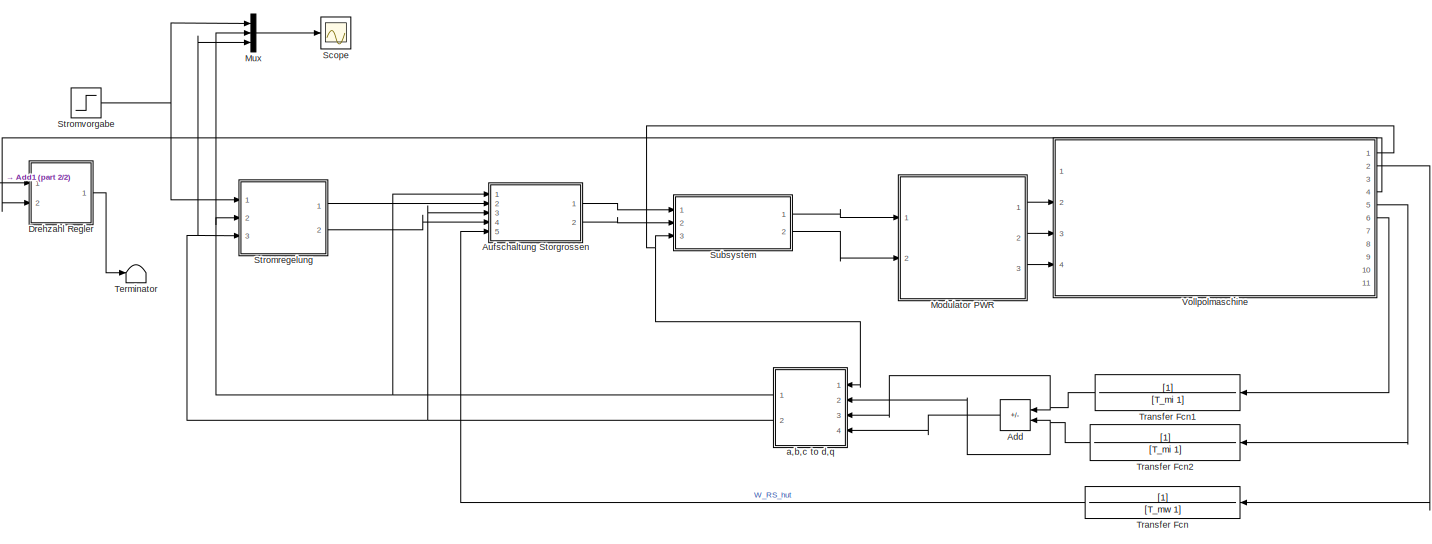
[diagram: root canvas - part 1/2, most of the canvas]
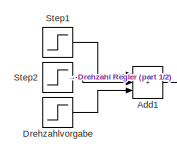
[diagram: root canvas - part 2/2, middle left region]
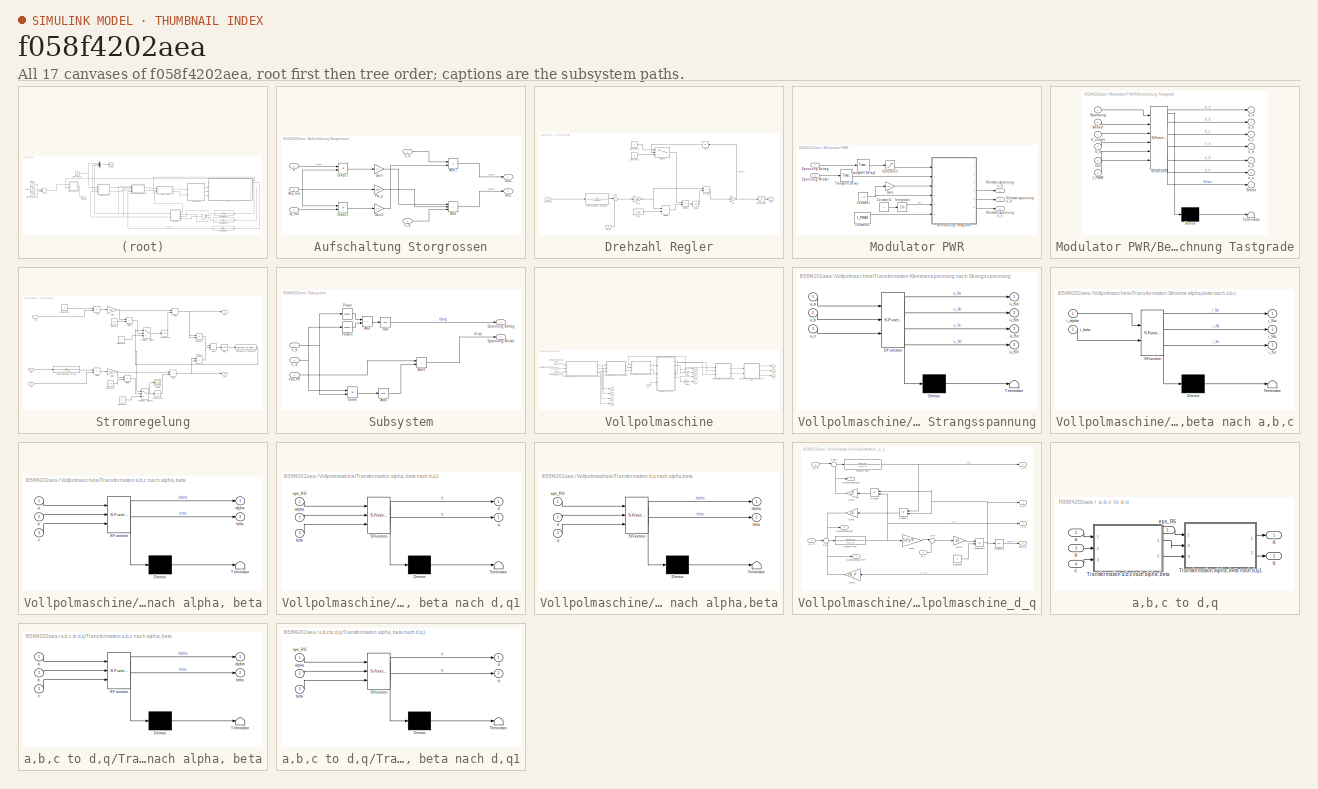
[diagram: thumbnail index - all 17 canvases of the model, root first then tree order]
MODEL slx_f058f4202aea
KIND model
CONFIG AbsTol = auto
CONFIG EnableMultiTasking = on
CONFIG FixedStep = 1e-8
CONFIG MaxStep = 1e-4
CONFIG MinStep = 1e-9
CONFIG RelTol = 1e-10
CONFIG SampleTimeConstraint = Unconstrained
CONFIG SolverName = VariableStepAuto
CONFIG StartTime = 0.0
CONFIG StopTime = 2
BLOCK [Sum] Add
  IconShape = rectangular
  Inputs = --
  NameLocation = top
  Ports = [2, 1]
BLOCK [Sum] Add1
  IconShape = rectangular
  Inputs = +++
  Ports = [3, 1]
BLOCK [SubSystem] Aufschaltung Storgrossen
  Ports = [5, 2]
  RequestExecContextInheritance = off
BLOCK [Sum] Aufschaltung Storgrossen/Add
  IconShape = rectangular
  Inputs = +++
  Ports = [3, 1]
BLOCK [Sum] Aufschaltung Storgrossen/Add1
  IconShape = rectangular
  Inputs = +-
  Ports = [2, 1]
BLOCK [Product] Aufschaltung Storgrossen/Divide1
  Inputs = **
  Ports = [2, 1]
  RndMeth = Zero
  SaturateOnIntegerOverflow = on
BLOCK [Product] Aufschaltung Storgrossen/Divide2
  Inputs = **
  Ports = [2, 1]
  RndMeth = Zero
  SaturateOnIntegerOverflow = on
BLOCK [Gain] Aufschaltung Storgrossen/Gain
  Gain = L_S
BLOCK [Gain] Aufschaltung Storgrossen/Gain1
  Gain = L_S
BLOCK [Outport] Aufschaltung Storgrossen/Out1
BLOCK [Outport] Aufschaltung Storgrossen/Out2
  Port = 2
BLOCK [Gain] Aufschaltung Storgrossen/Psi_p
  Gain = Psi_P
BLOCK [Inport] Aufschaltung Storgrossen/Wrs_hut
  Port = 5
BLOCK [Inport] Aufschaltung Storgrossen/d
  IconDisplay = Signal name
BLOCK [Inport] Aufschaltung Storgrossen/iq_hut
  Port = 3
BLOCK [Inport] Aufschaltung Storgrossen/u_d
  Port = 2
BLOCK [Inport] Aufschaltung Storgrossen/u_q
  Port = 4
BLOCK [SubSystem] Drehzahl Regler
  Ports = [2, 1]
  RequestExecContextInheritance = off
BLOCK [Abs] Drehzahl Regler/Abs1
  NameLocation = top
  SaturateOnIntegerOverflow = off
BLOCK [Constant] Drehzahl Regler/Constant2
  Value = 0
BLOCK [Constant] Drehzahl Regler/Constant3
BLOCK [Product] Drehzahl Regler/Divide2
  Inputs = */
  Ports = [2, 1]
BLOCK [Product] Drehzahl Regler/Divide3
  Inputs = **
  Ports = [2, 1]
BLOCK [TransferFcn] Drehzahl Regler/Führungsfilter Drehzahl
  Denominator = [T_nw 1]
BLOCK [Integrator] Drehzahl Regler/I_out1
  Ports = [1, 1]
BLOCK [Gain] Drehzahl Regler/Kp_w
  Gain = K_pw
BLOCK [Sum] Drehzahl Regler/PI_out1
  IconShape = rectangular
  Ports = [2, 1]
BLOCK [Saturate] Drehzahl Regler/Saturation1
  LowerLimit = -i_max
  UpperLimit = i_max
BLOCK [Sum] Drehzahl Regler/Sum
  Inputs = |+-
  Ports = [2, 1]
BLOCK [Switch] Drehzahl Regler/Switch1
  Criteria = u2 > Threshold
  InputSameDT = off
  SaturateOnIntegerOverflow = off
  Threshold = i_max
BLOCK [Constant] Drehzahl Regler/Tn_w
  Value = T_nw
BLOCK [Inport] Drehzahl Regler/W_m
  Port = 2
BLOCK [Inport] Drehzahl Regler/W_m_soll
BLOCK [Outport] Drehzahl Regler/i_q*
BLOCK [Gain] Drehzahl Regler/km
  Gain = 1/(3/2*p*Psi_P)
BLOCK [Step] Drehzahlvorgabe
  After = -30
  SampleTime = 0
  Time = 0.3
BLOCK [SubSystem] Modulator PWR
  Ports = [2, 3]
  RequestExecContextInheritance = off
  SystemSampleTime = 1/1e6
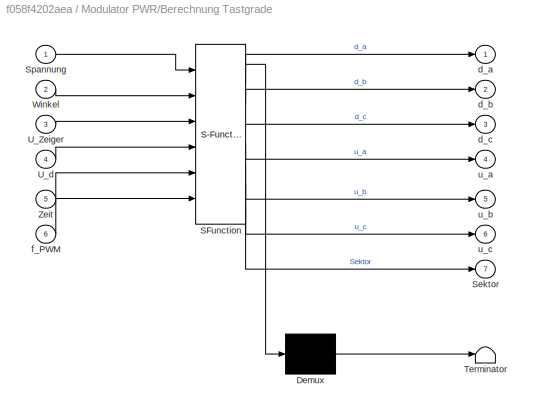
BLOCK [SubSystem] Modulator PWR/Berechnung Tastgrade
  ErrorFcn = Stateflow.Translate.translate
  PermitHierarchicalResolution = ExplicitOnly
  Ports = [6, 7]
  RequestExecContextInheritance = off
  SFBlockType = MATLAB Function
  SystemSampleTime = 1e-6
BLOCK [Demux] Modulator PWR/Berechnung Tastgrade/ Demux 
  Outputs = 1
  Ports = [1, 1]
BLOCK [S-Function] Modulator PWR/Berechnung Tastgrade/ SFunction 
  EnableBusSupport = on
  FunctionName = sf_sfun
  PortCounts = [6 8]
  Ports = [6, 8]
  SFcnIsStateOwnerBlock = off
  SFunctionDeploymentMode = off
  Tag = Stateflow S-Function 35
BLOCK [Terminator] Modulator PWR/Berechnung Tastgrade/ Terminator 
BLOCK [Outport] Modulator PWR/Berechnung Tastgrade/Sektor
  Port = 7
  VectorParamsAs1DForOutWhenUnconnected = off
BLOCK [Inport] Modulator PWR/Berechnung Tastgrade/Spannung
BLOCK [Inport] Modulator PWR/Berechnung Tastgrade/U_Zeiger
  Port = 3
BLOCK [Inport] Modulator PWR/Berechnung Tastgrade/U_d
  Port = 4
BLOCK [Inport] Modulator PWR/Berechnung Tastgrade/Winkel
  Port = 2
BLOCK [Inport] Modulator PWR/Berechnung Tastgrade/Zeit
  Port = 5
BLOCK [Outport] Modulator PWR/Berechnung Tastgrade/d_a
  VectorParamsAs1DForOutWhenUnconnected = off
BLOCK [Outport] Modulator PWR/Berechnung Tastgrade/d_b
  Port = 2
  VectorParamsAs1DForOutWhenUnconnected = off
BLOCK [Outport] Modulator PWR/Berechnung Tastgrade/d_c
  Port = 3
  VectorParamsAs1DForOutWhenUnconnected = off
BLOCK [Inport] Modulator PWR/Berechnung Tastgrade/f_PWM
  Port = 6
BLOCK [Outport] Modulator PWR/Berechnung Tastgrade/u_a
  Port = 4
  VectorParamsAs1DForOutWhenUnconnected = off
BLOCK [Outport] Modulator PWR/Berechnung Tastgrade/u_b
  Port = 5
  VectorParamsAs1DForOutWhenUnconnected = off
BLOCK [Outport] Modulator PWR/Berechnung Tastgrade/u_c
  Port = 6
  VectorParamsAs1DForOutWhenUnconnected = off
BLOCK [Constant] Modulator PWR/Constant
  Value = U_d
BLOCK [Constant] Modulator PWR/Constant1
BLOCK [Constant] Modulator PWR/Constant2
  Value = f_PWM
BLOCK [Gain] Modulator PWR/Gain
  Gain = 2/3
BLOCK [Integrator] Modulator PWR/Integrator
  Ports = [1, 1]
BLOCK [Outport] Modulator PWR/Klemmenspannung u_a
  VectorParamsAs1DForOutWhenUnconnected = off
BLOCK [Outport] Modulator PWR/Klemmenspannung u_b
  Port = 2
  VectorParamsAs1DForOutWhenUnconnected = off
BLOCK [Outport] Modulator PWR/Klemmenspannung u_c
  Port = 3
  VectorParamsAs1DForOutWhenUnconnected = off
BLOCK [Saturate] Modulator PWR/Saturation
  LowerLimit = 0
  UpperLimit = U_d*sqrt(3)/2
BLOCK [Inport] Modulator PWR/Spannung Betrag
BLOCK [Inport] Modulator PWR/Spannung Winkel
  Port = 2
BLOCK [TransportDelay] Modulator PWR/Transport Delay
  DelayTime = T_SR
  Ports = [1, 1]
BLOCK [TransportDelay] Modulator PWR/Transport Delay1
  DelayTime = T_SR
  Ports = [1, 1]
BLOCK [Mux] Mux
  DisplayOption = bar
  Inputs = 3
  Ports = [3, 1]
BLOCK [Scope] Scope
  Floating = off
  NumInputPorts = 1
  Ports = [1]
  ScopeSpecificationString = Simulink.scopes.TimeScopeBlockCfg('CurrentConfiguration', extmgr.ConfigurationSet(extmgr.Configuration('Core','General UI',true),extmgr.Configuration('Core','Source UI',true),extmgr.Configuration('Sources','WiredSimulink',true,'DataLoggingVariableName','ScopeData1'),extmgr.Configuration('Visuals','Time Domain',true,'SerializedDisplays',{struct('MinYLimReal','-8.35651','MaxYLimReal','42.64835','YLa...<+1516ch>
BLOCK [Step] Step1
  After = 10
  SampleTime = 0
  Time = 0.1
BLOCK [Step] Step2
  After = 20
  SampleTime = 0
  Time = 0.2
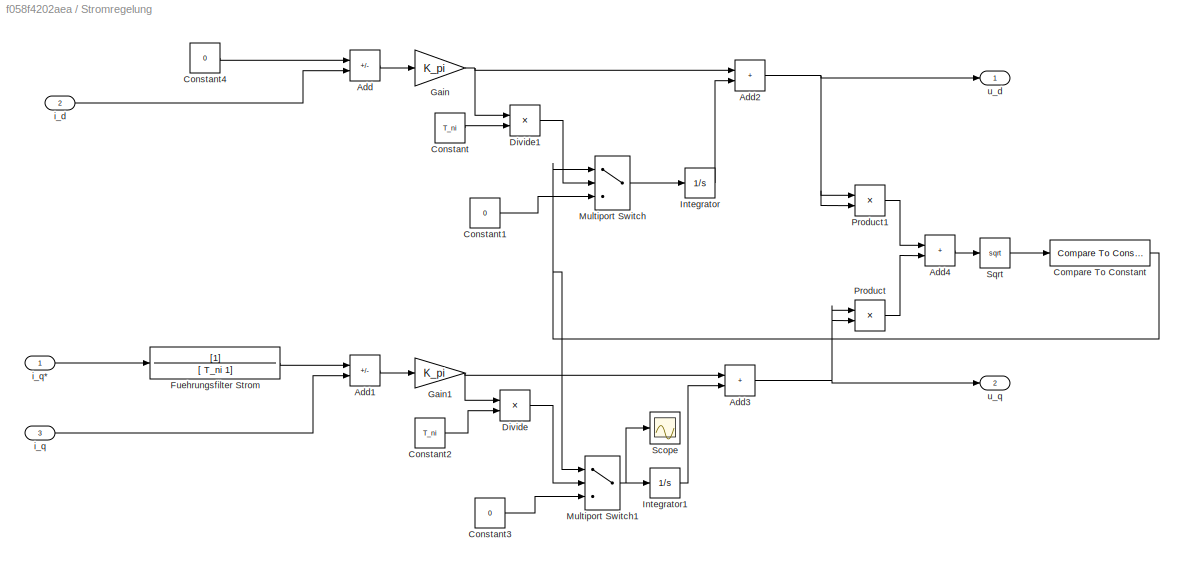
BLOCK [SubSystem] Stromregelung
  Ports = [3, 2]
  RequestExecContextInheritance = off
BLOCK [Sum] Stromregelung/Add
  IconShape = rectangular
  Inputs = +-
  Ports = [2, 1]
BLOCK [Sum] Stromregelung/Add1
  IconShape = rectangular
  Inputs = +-
  Ports = [2, 1]
BLOCK [Sum] Stromregelung/Add2
  IconShape = rectangular
  Ports = [2, 1]
BLOCK [Sum] Stromregelung/Add3
  IconShape = rectangular
  Ports = [2, 1]
BLOCK [Sum] Stromregelung/Add4
  IconShape = rectangular
  Ports = [2, 1]
BLOCK [Reference] Stromregelung/Compare To Constant  REF=simulink/Logic and Bit
Operations/Compare
To Constant
  Ports = [1, 1]
  SourceBlock = simulink/Logic and Bit\nOperations/Compare\nTo Constant
  SourceProductBaseCode = SL
  SourceType = Compare To Constant
BLOCK [Constant] Stromregelung/Constant
  Value = T_ni
BLOCK [Constant] Stromregelung/Constant1
  Value = 0
BLOCK [Constant] Stromregelung/Constant2
  Value = T_ni
BLOCK [Constant] Stromregelung/Constant3
  Value = 0
BLOCK [Constant] Stromregelung/Constant4
  Value = 0
BLOCK [Product] Stromregelung/Divide
  Inputs = */
  Ports = [2, 1]
BLOCK [Product] Stromregelung/Divide1
  Inputs = */
  Ports = [2, 1]
BLOCK [TransferFcn] Stromregelung/Fuehrungsfilter Strom
  Denominator = [ T_ni 1]
BLOCK [Gain] Stromregelung/Gain
  Gain = K_pi
BLOCK [Gain] Stromregelung/Gain1
  Gain = K_pi
BLOCK [Integrator] Stromregelung/Integrator
  Ports = [1, 1]
BLOCK [Integrator] Stromregelung/Integrator1
  Ports = [1, 1]
BLOCK [MultiPortSwitch] Stromregelung/Multiport Switch
  DataPortIndices = {0,1}
  DataPortOrder = Specify indices
  InputSameDT = off
  Ports = [3, 1]
  SaturateOnIntegerOverflow = off
BLOCK [MultiPortSwitch] Stromregelung/Multiport Switch1
  DataPortIndices = {0,1}
  DataPortOrder = Specify indices
  InputSameDT = off
  Ports = [3, 1]
  SaturateOnIntegerOverflow = off
BLOCK [Product] Stromregelung/Product
  Ports = [2, 1]
BLOCK [Product] Stromregelung/Product1
  Ports = [2, 1]
BLOCK [Scope] Stromregelung/Scope
  Floating = off
  NumInputPorts = 1
  Ports = [1]
  ScopeSpecificationString = Simulink.scopes.TimeScopeBlockCfg('CurrentConfiguration', extmgr.ConfigurationSet(extmgr.Configuration('Core','General UI',true),extmgr.Configuration('Core','Source UI',true),extmgr.Configuration('Sources','WiredSimulink',true,'DataLoggingVariableName','ScopeData1'),extmgr.Configuration('Visuals','Time Domain',true,'SerializedDisplays',{struct('MinYLimReal','-93182.86758','MaxYLimReal','838645.808...<+1464ch>
BLOCK [Sqrt] Stromregelung/Sqrt
BLOCK [Inport] Stromregelung/i_d
  Port = 2
BLOCK [Inport] Stromregelung/i_q
  Port = 3
BLOCK [Inport] Stromregelung/i_q*
BLOCK [Outport] Stromregelung/u_d
  VectorParamsAs1DForOutWhenUnconnected = off
BLOCK [Outport] Stromregelung/u_q
  Port = 2
  VectorParamsAs1DForOutWhenUnconnected = off
BLOCK [Step] Stromvorgabe
  After = 2
  SampleTime = 0
BLOCK [SubSystem] Subsystem
  Ports = [3, 2]
  RequestExecContextInheritance = off
BLOCK [Sum] Subsystem/Add
  IconShape = rectangular
  Ports = [2, 1]
BLOCK [Sum] Subsystem/Add1
  IconShape = rectangular
  Ports = [2, 1]
BLOCK [Trigonometry] Subsystem/Atan
  Operator = atan
  Ports = [1, 1]
BLOCK [Product] Subsystem/Divide
  Inputs = */
  Ports = [2, 1]
  RndMeth = Zero
  SaturateOnIntegerOverflow = on
BLOCK [Math] Subsystem/Power
  Operator = square
  Ports = [1, 1]
BLOCK [Math] Subsystem/Power1
  Operator = square
  Ports = [1, 1]
BLOCK [Outport] Subsystem/Spannung Betrag
  IconDisplay = Signal name
BLOCK [Outport] Subsystem/Spannung Winkel
  IconDisplay = Signal name
  Port = 2
BLOCK [Sqrt] Subsystem/Sqrt
BLOCK [Inport] Subsystem/eps_RS
  Port = 3
BLOCK [Inport] Subsystem/u_d
  IconDisplay = Signal name
BLOCK [Inport] Subsystem/u_q
  IconDisplay = Signal name
  Port = 2
BLOCK [Terminator] Terminator
BLOCK [TransferFcn] Transfer Fcn
  Denominator = [T_mw 1]
BLOCK [TransferFcn] Transfer Fcn1
  Denominator = [T_mi 1]
BLOCK [TransferFcn] Transfer Fcn2
  Denominator = [T_mi 1]
BLOCK [SubSystem] Vollpolmaschine
  Ports = [4, 11]
  RequestExecContextInheritance = off
BLOCK [Gain] Vollpolmaschine/Gain
  Gain = 1/p
BLOCK [Gain] Vollpolmaschine/Gain1
  Gain = 1/p
BLOCK [Inport] Vollpolmaschine/Klemmenspannung u_a
  Port = 2
BLOCK [Inport] Vollpolmaschine/Klemmenspannung u_b
  Port = 3
BLOCK [Inport] Vollpolmaschine/Klemmenspannung u_c
  Port = 4
BLOCK [Inport] Vollpolmaschine/M_L
BLOCK [SubSystem] Vollpolmaschine/Transformation Klemmenspannung nach Strangsspannung
  ErrorFcn = Stateflow.Translate.translate
  PermitHierarchicalResolution = ExplicitOnly
  Ports = [3, 4]
  RequestExecContextInheritance = off
  SFBlockType = MATLAB Function
  TreatAsAtomicUnit = on
BLOCK [Demux] Vollpolmaschine/Transformation Klemmenspannung nach Strangsspannung/ Demux 
  Outputs = 1
  Ports = [1, 1]
BLOCK [S-Function] Vollpolmaschine/Transformation Klemmenspannung nach Strangsspannung/ SFunction 
  EnableBusSupport = on
  FunctionName = sf_sfun
  PortCounts = [3 5]
  Ports = [3, 5]
  SFcnIsStateOwnerBlock = off
  SFunctionDeploymentMode = off
  Tag = Stateflow S-Function 36
BLOCK [Terminator] Vollpolmaschine/Transformation Klemmenspannung nach Strangsspannung/ Terminator 
BLOCK [Outport] Vollpolmaschine/Transformation Klemmenspannung nach Strangsspannung/u_S0
  Port = 4
  VectorParamsAs1DForOutWhenUnconnected = off
BLOCK [Outport] Vollpolmaschine/Transformation Klemmenspannung nach Strangsspannung/u_Sa
  VectorParamsAs1DForOutWhenUnconnected = off
BLOCK [Outport] Vollpolmaschine/Transformation Klemmenspannung nach Strangsspannung/u_Sb
  Port = 2
  VectorParamsAs1DForOutWhenUnconnected = off
BLOCK [Outport] Vollpolmaschine/Transformation Klemmenspannung nach Strangsspannung/u_Sc
  Port = 3
  VectorParamsAs1DForOutWhenUnconnected = off
BLOCK [Inport] Vollpolmaschine/Transformation Klemmenspannung nach Strangsspannung/u_a
BLOCK [Inport] Vollpolmaschine/Transformation Klemmenspannung nach Strangsspannung/u_b
  Port = 2
BLOCK [Inport] Vollpolmaschine/Transformation Klemmenspannung nach Strangsspannung/u_c
  Port = 3
BLOCK [SubSystem] Vollpolmaschine/Transformation Stroeme alpha,beta nach a,b,c
  ErrorFcn = Stateflow.Translate.translate
  PermitHierarchicalResolution = ExplicitOnly
  Ports = [2, 3]
  RequestExecContextInheritance = off
  SFBlockType = MATLAB Function
  TreatAsAtomicUnit = on
BLOCK [Demux] Vollpolmaschine/Transformation Stroeme alpha,beta nach a,b,c/ Demux 
  Outputs = 1
  Ports = [1, 1]
BLOCK [S-Function] Vollpolmaschine/Transformation Stroeme alpha,beta nach a,b,c/ SFunction 
  EnableBusSupport = on
  FunctionName = sf_sfun
  PortCounts = [2 4]
  Ports = [2, 4]
  SFcnIsStateOwnerBlock = off
  SFunctionDeploymentMode = off
  Tag = Stateflow S-Function 3
BLOCK [Terminator] Vollpolmaschine/Transformation Stroeme alpha,beta nach a,b,c/ Terminator 
BLOCK [Outport] Vollpolmaschine/Transformation Stroeme alpha,beta nach a,b,c/i_Sa
  VectorParamsAs1DForOutWhenUnconnected = off
BLOCK [Outport] Vollpolmaschine/Transformation Stroeme alpha,beta nach a,b,c/i_Sb
  Port = 2
  VectorParamsAs1DForOutWhenUnconnected = off
BLOCK [Outport] Vollpolmaschine/Transformation Stroeme alpha,beta nach a,b,c/i_Sc
  Port = 3
  VectorParamsAs1DForOutWhenUnconnected = off
BLOCK [Inport] Vollpolmaschine/Transformation Stroeme alpha,beta nach a,b,c/i_alpha
BLOCK [Inport] Vollpolmaschine/Transformation Stroeme alpha,beta nach a,b,c/i_beta
  Port = 2
BLOCK [SubSystem] Vollpolmaschine/Transformation a,b,c nach alpha, beta
  ErrorFcn = Stateflow.Translate.translate
  PermitHierarchicalResolution = ExplicitOnly
  Ports = [3, 2]
  RequestExecContextInheritance = off
  SFBlockType = MATLAB Function
  TreatAsAtomicUnit = on
BLOCK [Demux] Vollpolmaschine/Transformation a,b,c nach alpha, beta/ Demux 
  Outputs = 1
  Ports = [1, 1]
BLOCK [S-Function] Vollpolmaschine/Transformation a,b,c nach alpha, beta/ SFunction 
  EnableBusSupport = on
  FunctionName = sf_sfun
  PortCounts = [3 3]
  Ports = [3, 3]
  SFcnIsStateOwnerBlock = off
  SFunctionDeploymentMode = off
  Tag = Stateflow S-Function 37
BLOCK [Terminator] Vollpolmaschine/Transformation a,b,c nach alpha, beta/ Terminator 
BLOCK [Inport] Vollpolmaschine/Transformation a,b,c nach alpha, beta/a
BLOCK [Outport] Vollpolmaschine/Transformation a,b,c nach alpha, beta/alpha
  VectorParamsAs1DForOutWhenUnconnected = off
BLOCK [Inport] Vollpolmaschine/Transformation a,b,c nach alpha, beta/b
  Port = 2
BLOCK [Outport] Vollpolmaschine/Transformation a,b,c nach alpha, beta/beta
  Port = 2
  VectorParamsAs1DForOutWhenUnconnected = off
BLOCK [Inport] Vollpolmaschine/Transformation a,b,c nach alpha, beta/c
  Port = 3
BLOCK [SubSystem] Vollpolmaschine/Transformation alpha, beta nach d,q1
  ErrorFcn = Stateflow.Translate.translate
  PermitHierarchicalResolution = ExplicitOnly
  Ports = [3, 2]
  RequestExecContextInheritance = off
  SFBlockType = MATLAB Function
  TreatAsAtomicUnit = on
BLOCK [Demux] Vollpolmaschine/Transformation alpha, beta nach d,q1/ Demux 
  Outputs = 1
  Ports = [1, 1]
BLOCK [S-Function] Vollpolmaschine/Transformation alpha, beta nach d,q1/ SFunction 
  EnableBusSupport = on
  FunctionName = sf_sfun
  PortCounts = [3 3]
  Ports = [3, 3]
  SFcnIsStateOwnerBlock = off
  SFunctionDeploymentMode = off
  Tag = Stateflow S-Function 38
BLOCK [Terminator] Vollpolmaschine/Transformation alpha, beta nach d,q1/ Terminator 
BLOCK [Inport] Vollpolmaschine/Transformation alpha, beta nach d,q1/alpha
  Port = 2
BLOCK [Inport] Vollpolmaschine/Transformation alpha, beta nach d,q1/beta
  Port = 3
BLOCK [Outport] Vollpolmaschine/Transformation alpha, beta nach d,q1/d
  VectorParamsAs1DForOutWhenUnconnected = off
BLOCK [Inport] Vollpolmaschine/Transformation alpha, beta nach d,q1/eps_RS
BLOCK [Outport] Vollpolmaschine/Transformation alpha, beta nach d,q1/q
  Port = 2
  VectorParamsAs1DForOutWhenUnconnected = off
BLOCK [SubSystem] Vollpolmaschine/Transformation d,q nach alpha,beta
  ErrorFcn = Stateflow.Translate.translate
  PermitHierarchicalResolution = ExplicitOnly
  Ports = [3, 2]
  RequestExecContextInheritance = off
  SFBlockType = MATLAB Function
  TreatAsAtomicUnit = on
BLOCK [Demux] Vollpolmaschine/Transformation d,q nach alpha,beta/ Demux 
  Outputs = 1
  Ports = [1, 1]
BLOCK [S-Function] Vollpolmaschine/Transformation d,q nach alpha,beta/ SFunction 
  EnableBusSupport = on
  FunctionName = sf_sfun
  PortCounts = [3 3]
  Ports = [3, 3]
  SFcnIsStateOwnerBlock = off
  SFunctionDeploymentMode = off
  Tag = Stateflow S-Function 2
BLOCK [Terminator] Vollpolmaschine/Transformation d,q nach alpha,beta/ Terminator 
BLOCK [Outport] Vollpolmaschine/Transformation d,q nach alpha,beta/alpha
  VectorParamsAs1DForOutWhenUnconnected = off
BLOCK [Outport] Vollpolmaschine/Transformation d,q nach alpha,beta/beta
  Port = 2
  VectorParamsAs1DForOutWhenUnconnected = off
BLOCK [Inport] Vollpolmaschine/Transformation d,q nach alpha,beta/d
  Port = 2
BLOCK [Inport] Vollpolmaschine/Transformation d,q nach alpha,beta/eps_RS
BLOCK [Inport] Vollpolmaschine/Transformation d,q nach alpha,beta/q
  Port = 3
BLOCK [SubSystem] Vollpolmaschine/Vollpolmaschine_d_q
  Ports = [3, 7]
  RequestExecContextInheritance = off
BLOCK [Constant] Vollpolmaschine/Vollpolmaschine_d_q/Constant
  Value = 0
BLOCK [Gain] Vollpolmaschine/Vollpolmaschine_d_q/Gain
  Gain = 3/2*p*Psi_P
BLOCK [Gain] Vollpolmaschine/Vollpolmaschine_d_q/Gain1
  Gain = L_S
BLOCK [Gain] Vollpolmaschine/Vollpolmaschine_d_q/Gain2
  Gain = Psi_P
BLOCK [Gain] Vollpolmaschine/Vollpolmaschine_d_q/Gain3
  Gain = p/J
BLOCK [Gain] Vollpolmaschine/Vollpolmaschine_d_q/Gain4
  Gain = L_S
BLOCK [Integrator] Vollpolmaschine/Vollpolmaschine_d_q/Integrator
  Ports = [1, 1]
BLOCK [Integrator] Vollpolmaschine/Vollpolmaschine_d_q/Integrator1
  InitialConditionSource = external
  Ports = [2, 1]
BLOCK [Inport] Vollpolmaschine/Vollpolmaschine_d_q/M_L
  Port = 3
BLOCK [Product] Vollpolmaschine/Vollpolmaschine_d_q/Product
  Ports = [2, 1]
BLOCK [Product] Vollpolmaschine/Vollpolmaschine_d_q/Product1
  Ports = [2, 1]
BLOCK [Outport] Vollpolmaschine/Vollpolmaschine_d_q/Stoergroesse_PsiP
  Port = 5
  VectorParamsAs1DForOutWhenUnconnected = off
BLOCK [Outport] Vollpolmaschine/Vollpolmaschine_d_q/Stoergroesse_usd
  Port = 7
  VectorParamsAs1DForOutWhenUnconnected = off
BLOCK [Outport] Vollpolmaschine/Vollpolmaschine_d_q/Stoergroesse_usq
  Port = 6
  VectorParamsAs1DForOutWhenUnconnected = off
BLOCK [Sum] Vollpolmaschine/Vollpolmaschine_d_q/Sum
  Inputs = |+-
  Ports = [2, 1]
BLOCK [Sum] Vollpolmaschine/Vollpolmaschine_d_q/Sum2
  Inputs = -+-
  Ports = [3, 1]
BLOCK [Sum] Vollpolmaschine/Vollpolmaschine_d_q/Sum3
  Inputs = |++
  Ports = [2, 1]
BLOCK [TransferFcn] Vollpolmaschine/Vollpolmaschine_d_q/Transfer Fcn1
  Denominator = [T_S 1]
  Numerator = [1/R_S]
BLOCK [TransferFcn] Vollpolmaschine/Vollpolmaschine_d_q/Transfer Fcn2
  Denominator = [T_S 1]
  Numerator = [1/R_S]
BLOCK [Outport] Vollpolmaschine/Vollpolmaschine_d_q/eps_RS
  Port = 2
  VectorParamsAs1DForOutWhenUnconnected = off
BLOCK [Outport] Vollpolmaschine/Vollpolmaschine_d_q/i_S,d
  VectorParamsAs1DForOutWhenUnconnected = off
BLOCK [Outport] Vollpolmaschine/Vollpolmaschine_d_q/i_S,q
  Port = 4
  VectorParamsAs1DForOutWhenUnconnected = off
BLOCK [Inport] Vollpolmaschine/Vollpolmaschine_d_q/u_S,d
BLOCK [Inport] Vollpolmaschine/Vollpolmaschine_d_q/u_S,q
  Port = 2
BLOCK [Outport] Vollpolmaschine/Vollpolmaschine_d_q/w_RS
  Port = 3
  VectorParamsAs1DForOutWhenUnconnected = off
BLOCK [Outport] Vollpolmaschine/eps_M
  Port = 3
  VectorParamsAs1DForOutWhenUnconnected = off
BLOCK [Outport] Vollpolmaschine/eps_RS
  VectorParamsAs1DForOutWhenUnconnected = off
BLOCK [Outport] Vollpolmaschine/i_Sa
  Port = 5
  VectorParamsAs1DForOutWhenUnconnected = off
BLOCK [Outport] Vollpolmaschine/i_Sb
  Port = 6
  VectorParamsAs1DForOutWhenUnconnected = off
BLOCK [Outport] Vollpolmaschine/i_Sc
  Port = 7
  VectorParamsAs1DForOutWhenUnconnected = off
BLOCK [Outport] Vollpolmaschine/u_S0
  Port = 11
  VectorParamsAs1DForOutWhenUnconnected = off
BLOCK [Outport] Vollpolmaschine/u_Sa
  Port = 8
  VectorParamsAs1DForOutWhenUnconnected = off
BLOCK [Outport] Vollpolmaschine/u_Sb
  Port = 9
  VectorParamsAs1DForOutWhenUnconnected = off
BLOCK [Outport] Vollpolmaschine/u_Sc
  Port = 10
  VectorParamsAs1DForOutWhenUnconnected = off
BLOCK [Outport] Vollpolmaschine/w_M
  Port = 4
  VectorParamsAs1DForOutWhenUnconnected = off
BLOCK [Outport] Vollpolmaschine/w_RS
  Port = 2
  VectorParamsAs1DForOutWhenUnconnected = off
BLOCK [SubSystem] a,b,c to d,q
  NameLocation = top
  Ports = [4, 2]
  RequestExecContextInheritance = off
BLOCK [SubSystem] a,b,c to d,q/Transformation a,b,c nach alpha, beta
  ErrorFcn = Stateflow.Translate.translate
  PermitHierarchicalResolution = ExplicitOnly
  Ports = [3, 2]
  RequestExecContextInheritance = off
  SFBlockType = MATLAB Function
  TreatAsAtomicUnit = on
BLOCK [Demux] a,b,c to d,q/Transformation a,b,c nach alpha, beta/ Demux 
  Outputs = 1
  Ports = [1, 1]
BLOCK [S-Function] a,b,c to d,q/Transformation a,b,c nach alpha, beta/ SFunction 
  EnableBusSupport = on
  FunctionName = sf_sfun
  PortCounts = [3 3]
  Ports = [3, 3]
  SFcnIsStateOwnerBlock = off
  SFunctionDeploymentMode = off
  Tag = Stateflow S-Function 1
BLOCK [Terminator] a,b,c to d,q/Transformation a,b,c nach alpha, beta/ Terminator 
BLOCK [Inport] a,b,c to d,q/Transformation a,b,c nach alpha, beta/a
BLOCK [Outport] a,b,c to d,q/Transformation a,b,c nach alpha, beta/alpha
  VectorParamsAs1DForOutWhenUnconnected = off
BLOCK [Inport] a,b,c to d,q/Transformation a,b,c nach alpha, beta/b
  Port = 2
BLOCK [Outport] a,b,c to d,q/Transformation a,b,c nach alpha, beta/beta
  Port = 2
  VectorParamsAs1DForOutWhenUnconnected = off
BLOCK [Inport] a,b,c to d,q/Transformation a,b,c nach alpha, beta/c
  Port = 3
BLOCK [SubSystem] a,b,c to d,q/Transformation alpha, beta nach d,q1
  ErrorFcn = Stateflow.Translate.translate
  PermitHierarchicalResolution = ExplicitOnly
  Ports = [3, 2]
  RequestExecContextInheritance = off
  SFBlockType = MATLAB Function
  TreatAsAtomicUnit = on
BLOCK [Demux] a,b,c to d,q/Transformation alpha, beta nach d,q1/ Demux 
  Outputs = 1
  Ports = [1, 1]
BLOCK [S-Function] a,b,c to d,q/Transformation alpha, beta nach d,q1/ SFunction 
  EnableBusSupport = on
  FunctionName = sf_sfun
  PortCounts = [3 3]
  Ports = [3, 3]
  SFcnIsStateOwnerBlock = off
  SFunctionDeploymentMode = off
  Tag = Stateflow S-Function 4
BLOCK [Terminator] a,b,c to d,q/Transformation alpha, beta nach d,q1/ Terminator 
BLOCK [Inport] a,b,c to d,q/Transformation alpha, beta nach d,q1/alpha
  Port = 2
BLOCK [Inport] a,b,c to d,q/Transformation alpha, beta nach d,q1/beta
  Port = 3
BLOCK [Outport] a,b,c to d,q/Transformation alpha, beta nach d,q1/d
  VectorParamsAs1DForOutWhenUnconnected = off
BLOCK [Inport] a,b,c to d,q/Transformation alpha, beta nach d,q1/eps_RS
BLOCK [Outport] a,b,c to d,q/Transformation alpha, beta nach d,q1/q
  Port = 2
  VectorParamsAs1DForOutWhenUnconnected = off
BLOCK [Inport] a,b,c to d,q/a
  Port = 2
BLOCK [Inport] a,b,c to d,q/b
  Port = 3
BLOCK [Inport] a,b,c to d,q/c
  Port = 4
BLOCK [Outport] a,b,c to d,q/d
BLOCK [Inport] a,b,c to d,q/eps_RS
BLOCK [Outport] a,b,c to d,q/q
  Port = 2
LINE Add1:1 -> Drehzahl Regler:1
LINE Add:1 -> a,b,c to d,q:4
LINE Aufschaltung Storgrossen/Add1:1 -> Aufschaltung Storgrossen/Out1:1
LINE Aufschaltung Storgrossen/Add:1 -> Aufschaltung Storgrossen/Out2:1
LINE Aufschaltung Storgrossen/Divide1:1 -> Aufschaltung Storgrossen/Gain:1
LINE Aufschaltung Storgrossen/Divide2:1 -> Aufschaltung Storgrossen/Gain1:1
LINE Aufschaltung Storgrossen/Gain1:1 -> Aufschaltung Storgrossen/Add1:2
LINE Aufschaltung Storgrossen/Gain:1 -> Aufschaltung Storgrossen/Add:1
LINE Aufschaltung Storgrossen/Psi_p:1 -> Aufschaltung Storgrossen/Add:2
NET Aufschaltung Storgrossen/Wrs_hut:1 -> Aufschaltung Storgrossen/Divide1:2, Aufschaltung Storgrossen/Divide2:1, Aufschaltung Storgrossen/Psi_p:1
LINE Aufschaltung Storgrossen/d:1 -> Aufschaltung Storgrossen/Divide1:1
LINE Aufschaltung Storgrossen/iq_hut:1 -> Aufschaltung Storgrossen/Divide2:2
LINE Aufschaltung Storgrossen/u_d:1 -> Aufschaltung Storgrossen/Add1:1
LINE Aufschaltung Storgrossen/u_q:1 -> Aufschaltung Storgrossen/Add:3
LINE Aufschaltung Storgrossen:1 -> Subsystem:1
LINE Aufschaltung Storgrossen:2 -> Subsystem:2
LINE Drehzahl Regler/Abs1:1 -> Drehzahl Regler/Switch1:2
LINE Drehzahl Regler/Constant2:1 -> Drehzahl Regler/Switch1:1
LINE Drehzahl Regler/Constant3:1 -> Drehzahl Regler/Switch1:3
LINE Drehzahl Regler/Divide2:1 -> Drehzahl Regler/Divide3:2
LINE Drehzahl Regler/Divide3:1 -> Drehzahl Regler/I_out1:1
LINE Drehzahl Regler/Führungsfilter Drehzahl:1 -> Drehzahl Regler/Sum:1
LINE Drehzahl Regler/I_out1:1 -> Drehzahl Regler/PI_out1:2
NET Drehzahl Regler/Kp_w:1 -> Drehzahl Regler/Divide2:1, Drehzahl Regler/PI_out1:1
LINE Drehzahl Regler/PI_out1:1 -> Drehzahl Regler/km:1
LINE Drehzahl Regler/Saturation1:1 -> Drehzahl Regler/i_q*:1
LINE Drehzahl Regler/Sum:1 -> Drehzahl Regler/Kp_w:1
LINE Drehzahl Regler/Switch1:1 -> Drehzahl Regler/Divide3:1
LINE Drehzahl Regler/Tn_w:1 -> Drehzahl Regler/Divide2:2
LINE Drehzahl Regler/W_m:1 -> Drehzahl Regler/Sum:2
LINE Drehzahl Regler/W_m_soll:1 -> Drehzahl Regler/Führungsfilter Drehzahl:1
NET Drehzahl Regler/km:1 -> Drehzahl Regler/Abs1:1, Drehzahl Regler/Saturation1:1
LINE Drehzahl Regler:1 -> Terminator:1
LINE Drehzahlvorgabe:1 -> Add1:3
LINE Modulator PWR/Berechnung Tastgrade:4 -> Modulator PWR/Klemmenspannung u_a:1
LINE Modulator PWR/Berechnung Tastgrade:5 -> Modulator PWR/Klemmenspannung u_b:1
LINE Modulator PWR/Berechnung Tastgrade:6 -> Modulator PWR/Klemmenspannung u_c:1
LINE Modulator PWR/Constant1:1 -> Modulator PWR/Integrator:1
LINE Modulator PWR/Constant2:1 -> Modulator PWR/Berechnung Tastgrade:6
NET Modulator PWR/Constant:1 -> Modulator PWR/Berechnung Tastgrade:4, Modulator PWR/Gain:1
LINE Modulator PWR/Gain:1 -> Modulator PWR/Berechnung Tastgrade:3
LINE Modulator PWR/Integrator:1 -> Modulator PWR/Berechnung Tastgrade:5
LINE Modulator PWR/Saturation:1 -> Modulator PWR/Berechnung Tastgrade:1
LINE Modulator PWR/Spannung Betrag:1 -> Modulator PWR/Transport Delay1:1
LINE Modulator PWR/Spannung Winkel:1 -> Modulator PWR/Transport Delay:1
LINE Modulator PWR/Transport Delay1:1 -> Modulator PWR/Saturation:1
LINE Modulator PWR/Transport Delay:1 -> Modulator PWR/Berechnung Tastgrade:2
LINE Modulator PWR:1 -> Vollpolmaschine:2
LINE Modulator PWR:2 -> Vollpolmaschine:3
LINE Modulator PWR:3 -> Vollpolmaschine:4
LINE Mux:1 -> Scope:1
LINE Step1:1 -> Add1:1
LINE Step2:1 -> Add1:2
LINE Stromregelung/Add1:1 -> Stromregelung/Gain1:1
NET Stromregelung/Add2:1 -> Stromregelung/Product1:1, Stromregelung/Product1:2, Stromregelung/u_d:1
NET Stromregelung/Add3:1 -> Stromregelung/Product:1, Stromregelung/Product:2, Stromregelung/u_q:1
LINE Stromregelung/Add4:1 -> Stromregelung/Sqrt:1
LINE Stromregelung/Add:1 -> Stromregelung/Gain:1
NET Stromregelung/Compare To Constant:1 -> Stromregelung/Multiport Switch1:1, Stromregelung/Multiport Switch:1
LINE Stromregelung/Constant1:1 -> Stromregelung/Multiport Switch:3
LINE Stromregelung/Constant2:1 -> Stromregelung/Divide:2
LINE Stromregelung/Constant3:1 -> Stromregelung/Multiport Switch1:3
LINE Stromregelung/Constant4:1 -> Stromregelung/Add:1
LINE Stromregelung/Constant:1 -> Stromregelung/Divide1:2
LINE Stromregelung/Divide1:1 -> Stromregelung/Multiport Switch:2
LINE Stromregelung/Divide:1 -> Stromregelung/Multiport Switch1:2
LINE Stromregelung/Fuehrungsfilter Strom:1 -> Stromregelung/Add1:1
NET Stromregelung/Gain1:1 -> Stromregelung/Add3:1, Stromregelung/Divide:1
NET Stromregelung/Gain:1 -> Stromregelung/Add2:1, Stromregelung/Divide1:1
LINE Stromregelung/Integrator1:1 -> Stromregelung/Add3:2
LINE Stromregelung/Integrator:1 -> Stromregelung/Add2:2
NET Stromregelung/Multiport Switch1:1 -> Stromregelung/Integrator1:1, Stromregelung/Scope:1
LINE Stromregelung/Multiport Switch:1 -> Stromregelung/Integrator:1
LINE Stromregelung/Product1:1 -> Stromregelung/Add4:1
LINE Stromregelung/Product:1 -> Stromregelung/Add4:2
LINE Stromregelung/Sqrt:1 -> Stromregelung/Compare To Constant:1
LINE Stromregelung/i_d:1 -> Stromregelung/Add:2
LINE Stromregelung/i_q*:1 -> Stromregelung/Fuehrungsfilter Strom:1
LINE Stromregelung/i_q:1 -> Stromregelung/Add1:2
LINE Stromregelung:1 -> Aufschaltung Storgrossen:2
LINE Stromregelung:2 -> Aufschaltung Storgrossen:4
NET Stromvorgabe:1 -> Mux:1, Stromregelung:1
LINE Subsystem/Add1:1 -> Subsystem/Spannung Winkel:1
LINE Subsystem/Add:1 -> Subsystem/Sqrt:1
LINE Subsystem/Atan:1 -> Subsystem/Add1:2
LINE Subsystem/Divide:1 -> Subsystem/Atan:1
LINE Subsystem/Power1:1 -> Subsystem/Add:2
LINE Subsystem/Power:1 -> Subsystem/Add:1
LINE Subsystem/Sqrt:1 -> Subsystem/Spannung Betrag:1
LINE Subsystem/eps_RS:1 -> Subsystem/Add1:1
NET Subsystem/u_d:1 -> Subsystem/Divide:2, Subsystem/Power:1
NET Subsystem/u_q:1 -> Subsystem/Divide:1, Subsystem/Power1:1
LINE Subsystem:1 -> Modulator PWR:1
LINE Subsystem:2 -> Modulator PWR:2
NET Transfer Fcn1:1 -> Add:1, a,b,c to d,q:3
NET Transfer Fcn2:1 -> Add:2, a,b,c to d,q:2
LINE Transfer Fcn:1 -> Aufschaltung Storgrossen:5
LINE Vollpolmaschine/Gain1:1 -> Vollpolmaschine/w_M:1
LINE Vollpolmaschine/Gain:1 -> Vollpolmaschine/eps_M:1
LINE Vollpolmaschine/Klemmenspannung u_a:1 -> Vollpolmaschine/Transformation Klemmenspannung nach Strangsspannung:1
LINE Vollpolmaschine/Klemmenspannung u_b:1 -> Vollpolmaschine/Transformation Klemmenspannung nach Strangsspannung:2
LINE Vollpolmaschine/Klemmenspannung u_c:1 -> Vollpolmaschine/Transformation Klemmenspannung nach Strangsspannung:3
LINE Vollpolmaschine/M_L:1 -> Vollpolmaschine/Vollpolmaschine_d_q:3
NET Vollpolmaschine/Transformation Klemmenspannung nach Strangsspannung:1 -> Vollpolmaschine/Transformation a,b,c nach alpha, beta:1, Vollpolmaschine/u_Sa:1
NET Vollpolmaschine/Transformation Klemmenspannung nach Strangsspannung:2 -> Vollpolmaschine/Transformation a,b,c nach alpha, beta:2, Vollpolmaschine/u_Sb:1
NET Vollpolmaschine/Transformation Klemmenspannung nach Strangsspannung:3 -> Vollpolmaschine/Transformation a,b,c nach alpha, beta:3, Vollpolmaschine/u_Sc:1
LINE Vollpolmaschine/Transformation Klemmenspannung nach Strangsspannung:4 -> Vollpolmaschine/u_S0:1
LINE Vollpolmaschine/Transformation Stroeme alpha,beta nach a,b,c:1 -> Vollpolmaschine/i_Sa:1
LINE Vollpolmaschine/Transformation Stroeme alpha,beta nach a,b,c:2 -> Vollpolmaschine/i_Sb:1
LINE Vollpolmaschine/Transformation Stroeme alpha,beta nach a,b,c:3 -> Vollpolmaschine/i_Sc:1
LINE Vollpolmaschine/Transformation a,b,c nach alpha, beta:1 -> Vollpolmaschine/Transformation alpha, beta nach d,q1:2
LINE Vollpolmaschine/Transformation a,b,c nach alpha, beta:2 -> Vollpolmaschine/Transformation alpha, beta nach d,q1:3
LINE Vollpolmaschine/Transformation alpha, beta nach d,q1:1 -> Vollpolmaschine/Vollpolmaschine_d_q:1
LINE Vollpolmaschine/Transformation alpha, beta nach d,q1:2 -> Vollpolmaschine/Vollpolmaschine_d_q:2
LINE Vollpolmaschine/Transformation d,q nach alpha,beta:1 -> Vollpolmaschine/Transformation Stroeme alpha,beta nach a,b,c:1
LINE Vollpolmaschine/Transformation d,q nach alpha,beta:2 -> Vollpolmaschine/Transformation Stroeme alpha,beta nach a,b,c:2
LINE Vollpolmaschine/Vollpolmaschine_d_q/Constant:1 -> Vollpolmaschine/Vollpolmaschine_d_q/Integrator1:2
NET Vollpolmaschine/Vollpolmaschine_d_q/Gain1:1 -> Vollpolmaschine/Vollpolmaschine_d_q/Stoergroesse_usq:1, Vollpolmaschine/Vollpolmaschine_d_q/Sum2:1
NET Vollpolmaschine/Vollpolmaschine_d_q/Gain2:1 -> Vollpolmaschine/Vollpolmaschine_d_q/Stoergroesse_PsiP:1, Vollpolmaschine/Vollpolmaschine_d_q/Sum2:3
LINE Vollpolmaschine/Vollpolmaschine_d_q/Gain3:1 -> Vollpolmaschine/Vollpolmaschine_d_q/Integrator1:1
NET Vollpolmaschine/Vollpolmaschine_d_q/Gain4:1 -> Vollpolmaschine/Vollpolmaschine_d_q/Stoergroesse_usd:1, Vollpolmaschine/Vollpolmaschine_d_q/Sum3:2
LINE Vollpolmaschine/Vollpolmaschine_d_q/Gain:1 -> Vollpolmaschine/Vollpolmaschine_d_q/Sum:1
NET Vollpolmaschine/Vollpolmaschine_d_q/Integrator1:1 -> Vollpolmaschine/Vollpolmaschine_d_q/Gain2:1, Vollpolmaschine/Vollpolmaschine_d_q/Integrator:1, Vollpolmaschine/Vollpolmaschine_d_q/Product1:2, Vollpolmaschine/Vollpolmaschine_d_q/Product:1, Vollpolmaschine/Vollpolmaschine_d_q/w_RS:1
LINE Vollpolmaschine/Vollpolmaschine_d_q/Integrator:1 -> Vollpolmaschine/Vollpolmaschine_d_q/eps_RS:1
LINE Vollpolmaschine/Vollpolmaschine_d_q/M_L:1 -> Vollpolmaschine/Vollpolmaschine_d_q/Sum:2
LINE Vollpolmaschine/Vollpolmaschine_d_q/Product1:1 -> Vollpolmaschine/Vollpolmaschine_d_q/Gain1:1
LINE Vollpolmaschine/Vollpolmaschine_d_q/Product:1 -> Vollpolmaschine/Vollpolmaschine_d_q/Gain4:1
LINE Vollpolmaschine/Vollpolmaschine_d_q/Sum2:1 -> Vollpolmaschine/Vollpolmaschine_d_q/Transfer Fcn2:1
LINE Vollpolmaschine/Vollpolmaschine_d_q/Sum3:1 -> Vollpolmaschine/Vollpolmaschine_d_q/Transfer Fcn1:1
LINE Vollpolmaschine/Vollpolmaschine_d_q/Sum:1 -> Vollpolmaschine/Vollpolmaschine_d_q/Gain3:1
NET Vollpolmaschine/Vollpolmaschine_d_q/Transfer Fcn1:1 -> Vollpolmaschine/Vollpolmaschine_d_q/Product1:1, Vollpolmaschine/Vollpolmaschine_d_q/i_S,d:1
NET Vollpolmaschine/Vollpolmaschine_d_q/Transfer Fcn2:1 -> Vollpolmaschine/Vollpolmaschine_d_q/Gain:1, Vollpolmaschine/Vollpolmaschine_d_q/Product:2, Vollpolmaschine/Vollpolmaschine_d_q/i_S,q:1
LINE Vollpolmaschine/Vollpolmaschine_d_q/u_S,d:1 -> Vollpolmaschine/Vollpolmaschine_d_q/Sum3:1
LINE Vollpolmaschine/Vollpolmaschine_d_q/u_S,q:1 -> Vollpolmaschine/Vollpolmaschine_d_q/Sum2:2
LINE Vollpolmaschine/Vollpolmaschine_d_q:1 -> Vollpolmaschine/Transformation d,q nach alpha,beta:2
NET Vollpolmaschine/Vollpolmaschine_d_q:2 -> Vollpolmaschine/Gain:1, Vollpolmaschine/Transformation alpha, beta nach d,q1:1, Vollpolmaschine/Transformation d,q nach alpha,beta:1, Vollpolmaschine/eps_RS:1
NET Vollpolmaschine/Vollpolmaschine_d_q:3 -> Vollpolmaschine/Gain1:1, Vollpolmaschine/w_RS:1
LINE Vollpolmaschine/Vollpolmaschine_d_q:4 -> Vollpolmaschine/Transformation d,q nach alpha,beta:3
NET Vollpolmaschine:1 -> Subsystem:3, a,b,c to d,q:1
LINE Vollpolmaschine:2 -> Transfer Fcn:1
LINE Vollpolmaschine:4 -> Drehzahl Regler:2
LINE Vollpolmaschine:5 -> Transfer Fcn2:1
LINE Vollpolmaschine:6 -> Transfer Fcn1:1
LINE a,b,c to d,q/Transformation a,b,c nach alpha, beta:1 -> a,b,c to d,q/Transformation alpha, beta nach d,q1:2
LINE a,b,c to d,q/Transformation a,b,c nach alpha, beta:2 -> a,b,c to d,q/Transformation alpha, beta nach d,q1:3
LINE a,b,c to d,q/Transformation alpha, beta nach d,q1:1 -> a,b,c to d,q/d:1
LINE a,b,c to d,q/Transformation alpha, beta nach d,q1:2 -> a,b,c to d,q/q:1
LINE a,b,c to d,q/a:1 -> a,b,c to d,q/Transformation a,b,c nach alpha, beta:1
LINE a,b,c to d,q/b:1 -> a,b,c to d,q/Transformation a,b,c nach alpha, beta:2
LINE a,b,c to d,q/c:1 -> a,b,c to d,q/Transformation a,b,c nach alpha, beta:3
LINE a,b,c to d,q/eps_RS:1 -> a,b,c to d,q/Transformation alpha, beta nach d,q1:1
NET a,b,c to d,q:1 -> Aufschaltung Storgrossen:1, Mux:2, Stromregelung:2
NET a,b,c to d,q:2 -> Aufschaltung Storgrossen:3, Mux:3, Stromregelung:3
note: NET lines group one-source signal fan-out (src -> all destinations, sorted); 1:1 wires keep LINE
CHART a,b,c to d,q/Transformation a,b,c nach alpha, beta states=1 transitions=1
  STATE_LABEL 'eML_blk_kernel()'
  STATE_LABEL 'SCRIPT:\nfunction [alpha,beta] = fcn(a,b,c)\nalpha=2/3*(a+cos(2*pi/2)*b+cos(4*pi/3)*c);\nbeta=2/3*(sin(2*pi/3)*b+sin(4*pi/3)*c);\n\n'
CHART Vollpolmaschine/Transformation d,q nach alpha,beta states=1 transitions=1
  STATE_LABEL 'eML_blk_kernel()'
  STATE_LABEL 'SCRIPT:\nfunction [alpha,beta] = fcn(eps_RS,d,q)\nalpha=cos(eps_RS)*d-sin(eps_RS)*q;\nbeta=sin(eps_RS)*d+cos(eps_RS)*q;'
CHART Vollpolmaschine/Transformation Stroeme alpha,beta
nach a,b,c states=1 transitions=1
  STATE_LABEL 'eML_blk_kernel()'
  STATE_LABEL 'SCRIPT:\nfunction [i_Sa,i_Sb,i_Sc] = fcn(i_alpha,i_beta)\ni_Sa=i_alpha;\ni_Sb=-1/2*i_alpha+sqrt(3)/2*i_beta;\ni_Sc=-i_Sa-i_Sb;'
CHART a,b,c to d,q/Transformation alpha, beta nach d,q1 states=1 transitions=1
  STATE_LABEL 'eML_blk_kernel()'
  STATE_LABEL 'SCRIPT:\nfunction [d,q] = fcn(eps_RS,alpha,beta)\nd=cos(eps_RS)*alpha+sin(eps_RS)*beta;\nq=-sin(eps_RS)*alpha+cos(eps_RS)*beta;\n'
CHART Modulator PWR/Berechnung Tastgrade states=1 transitions=1
  STATE_LABEL 'eML_blk_kernel()'
  STATE_LABEL 'SCRIPT:\nfunction [d_a,d_b,d_c,u_a,u_b,u_c,Sektor]= fcn(Spannung, Winkel,U_Zeiger,U_d, Zeit, f_PWM)\n\n%Winkel auf 0 bis 2pi bringen\n\nwhile Winkel>=2*pi\n    Winkel=Winkel-2*pi;\nend\nwhile Winkel<0\n    Winkel=Winkel+2*pi;\nend\n\n%Winkel dekrementieren, bis er sich zwischen 0 und 60 Grad befindet\nSektor=1;\nwhile Winkel>pi/3\n    Sektor=Sektor+1;\n    Winkel=Winkel-pi/3;\nend\n%Zeiger berechnen\nZeigerlaenge_2_...<+1550ch>'
CHART Vollpolmaschine/Transformation Klemmenspannung nach Strangsspannung states=1 transitions=1
  STATE_LABEL 'eML_blk_kernel()'
  STATE_LABEL 'SCRIPT:\nfunction [u_Sa,u_Sb,u_Sc,u_S0] = fcn(u_a,u_b,u_c)\n%Konvertiert Klemmenspannungen in Strangspannungen\nu_S0=u_a/3+u_b/3+u_c/3;\nu_Sa=u_a-u_S0;\nu_Sb=u_b-u_S0;\nu_Sc=u_c-u_S0;\nend\n\n'
CHART Vollpolmaschine/Transformation a,b,c nach alpha, beta states=1 transitions=1
  STATE_LABEL 'eML_blk_kernel()'
  STATE_LABEL 'SCRIPT:\nfunction [alpha,beta] = fcn(a,b,c)\nalpha=2/3*(a+cos(2*pi/2)*b+cos(4*pi/3)*c);\nbeta=2/3*(sin(2*pi/3)*b+sin(4*pi/3)*c);\n\n'
CHART Vollpolmaschine/Transformation alpha, beta nach d,q1 states=1 transitions=1
  STATE_LABEL 'eML_blk_kernel()'
  STATE_LABEL 'SCRIPT:\nfunction [d,q] = fcn(eps_RS,alpha,beta)\nd=cos(eps_RS)*alpha+sin(eps_RS)*beta;\nq=-sin(eps_RS)*alpha+cos(eps_RS)*beta;\n'
CHART  states=0 transitions=0
CHART  states=0 transitions=0
CHART  states=0 transitions=0
CHART  states=0 transitions=0
CHART  states=0 transitions=0
CHART  states=0 transitions=0
CHART  states=0 transitions=0
CHART  states=0 transitions=0
